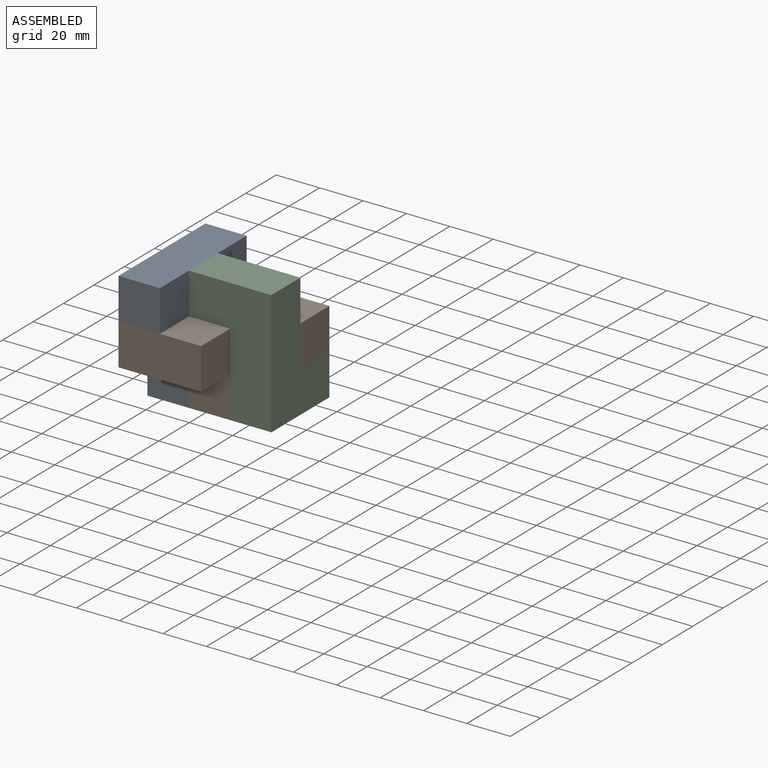
[diagram: assembled view]
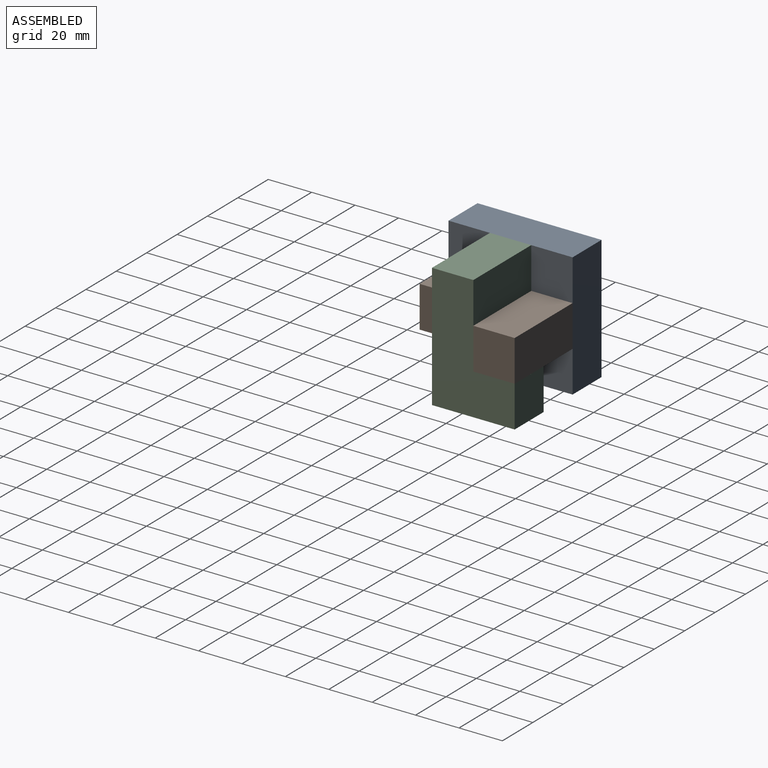
[diagram: assembled view, second angle]
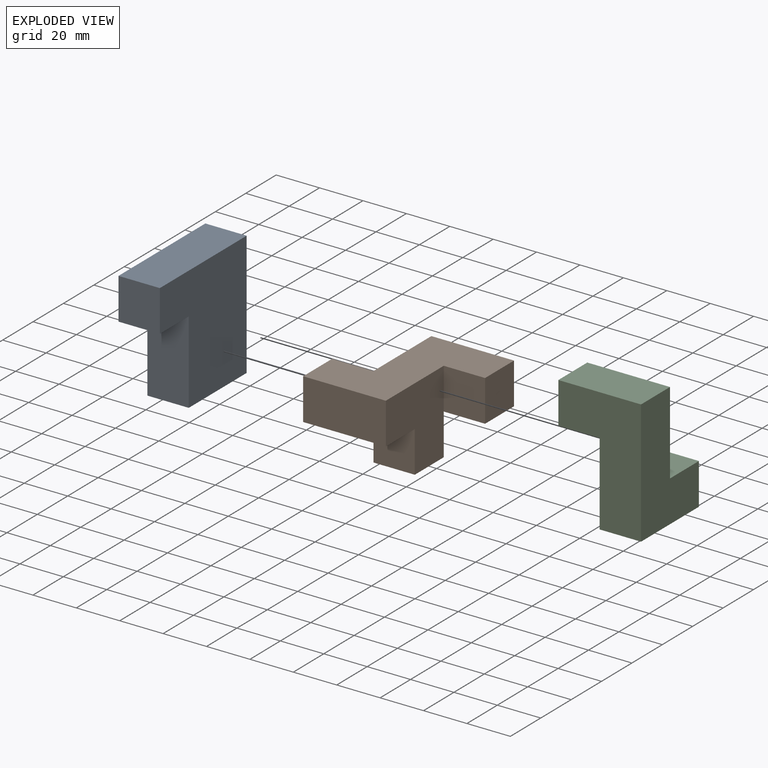
[diagram: exploded view]
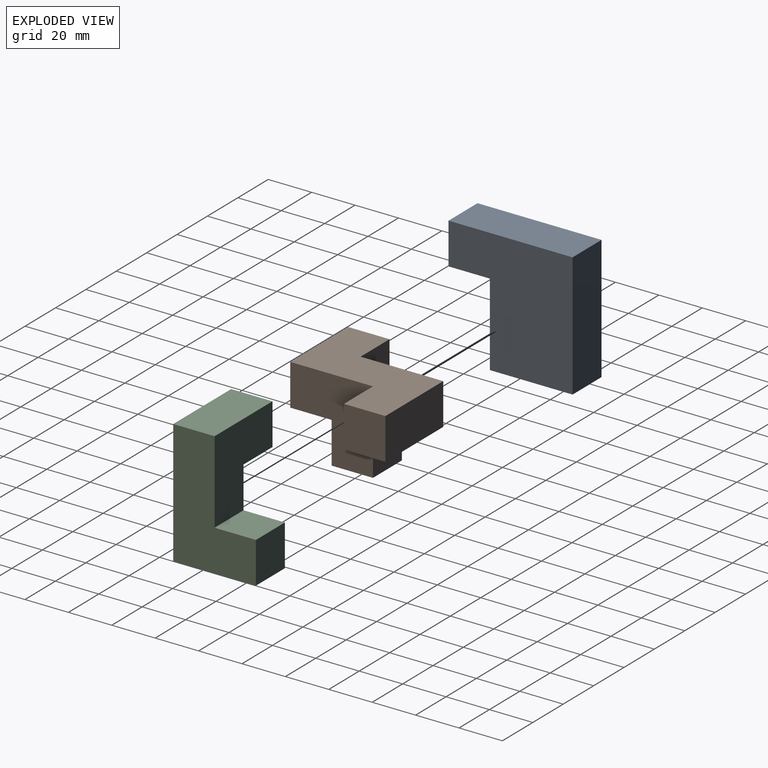
[diagram: exploded view, second angle]
ASSEMBLY  parts=3 mates=2
PART A: 8 faces, bbox 57.2x19.1x57.2 mm
  f0: plane 38.1x19.05mm, normal (-1,0,0), area 725.8mm2, adj f1,f5,f6,f7
  f1: plane 38.1x19.05mm, normal (0,0,-1), area 725.8mm2, adj f0,f2,f6,f7
  f2: plane 57.15x19.05mm, normal (1,0,0), area 1088.7mm2, adj f1,f3,f6,f7
  f3: plane 57.15x19.05mm, normal (0,0,1), area 1088.7mm2, adj f2,f4,f6,f7
  f4: plane 19.05x19.05mm, normal (-1,0,0), area 362.9mm2, adj f3,f5,f6,f7
  f5: plane 19.05x19.05mm, normal (0,0,-1), area 362.9mm2, adj f0,f4,f6,f7
  f6: plane 57.15x57.15mm, normal (0,-1,0), area 2540.3mm2, adj f0,f1,f2,f3,f4,f5
  f7: plane 57.15x57.15mm, normal (0,1,0), area 2540.3mm2, adj f0,f1,f2,f3,f4,f5
PART B: 14 faces, bbox 57.2x38.1x57.2 mm
  f0: plane 38.1x19.05mm, normal (0,1,0), area 725.8mm2, adj f1,f2,f3,f8,f12
  f1: plane 19.05x19.05mm, normal (-1,0,0), area 362.9mm2, adj f0,f2,f8,f9
  f2: plane 38.1x19.05mm, normal (0,0,-1), area 725.8mm2, adj f0,f1,f3,f9
  f3: plane 38.1x38.1mm, normal (1,0,0), area 1088.7mm2, adj f0,f2,f4,f9,f11,f12,f13
  f4: plane 19.05x19.05mm, normal (0,0,-1), area 362.9mm2, adj f3,f5,f9,f10
  f5: plane 19.05x19.05mm, normal (1,0,0), area 362.9mm2, adj f4,f6,f9,f10
  f6: plane 38.1x19.05mm, normal (0,0,1), area 725.8mm2, adj f5,f7,f9,f10
  f7: plane 38.1x38.1mm, normal (-1,0,0), area 1088.7mm2, adj f6,f8,f9,f10,f11,f12,f13
  f8: plane 19.05x19.05mm, normal (0,0,1), area 362.9mm2, adj f0,f1,f7,f9
  f9: plane 57.15x57.15mm, normal (0,-1,0), area 1814.5mm2, adj f1,f2,f3,f4,f5,f6,f7,f8
  f10: plane 38.1x19.05mm, normal (0,1,0), area 725.8mm2, adj f4,f5,f6,f7,f11
  f11: plane 19.05x19.05mm, normal (0,0,1), area 362.9mm2, adj f3,f7,f10,f13
  f12: plane 19.05x19.05mm, normal (0,0,-1), area 362.9mm2, adj f0,f3,f7,f13
  f13: plane 19.05x19.05mm, normal (0,1,0), area 362.9mm2, adj f3,f7,f11,f12
PART C: 10 faces, bbox 38.1x38.1x57.2 mm
  f0: plane 19.05x19.05mm, normal (-1,0,0), area 362.9mm2, adj f1,f5,f6,f7
  f1: plane 38.1x19.05mm, normal (0,0,-1), area 725.8mm2, adj f0,f2,f6,f7
  f2: plane 57.15x38.1mm, normal (1,0,0), area 1451.6mm2, adj f1,f3,f6,f7,f8,f9
  f3: plane 38.1x19.05mm, normal (0,0,1), area 725.8mm2, adj f2,f4,f7,f9
  f4: plane 38.1x38.1mm, normal (-1,0,0), area 1088.7mm2, adj f3,f5,f6,f7,f8,f9
  f5: plane 19.05x19.05mm, normal (0,0,1), area 362.9mm2, adj f0,f4,f6,f7
  f6: plane 38.1x38.1mm, normal (0,-1,0), area 1088.7mm2, adj f0,f1,f2,f4,f5,f8
  f7: plane 57.15x38.1mm, normal (0,1,0), area 1451.6mm2, adj f0,f1,f2,f3,f4,f5
  f8: plane 19.05x19.05mm, normal (0,0,-1), area 362.9mm2, adj f2,f4,f6,f9
  f9: plane 19.05x19.05mm, normal (0,-1,0), area 362.9mm2, adj f2,f3,f4,f8
PLACE A rot(axis=(0,0,1),90deg) t=(-244.92,8.08,-21.45)mm
PLACE B rot(axis=(-1,0,0),90deg) t=(-244.92,-10.97,-2.4)mm
PLACE C rot(axis=(0,0,-1),90deg) t=(-187.77,46.18,-21.45)mm
MATE fastened C.f7 <-> B.f5  axis (1,0,0) through (-187.77,46.18,-2.4)mm
MATE fastened A.f7 <-> B.f1  axis (-1,0,0) through (-244.92,-10.97,16.65)mm
